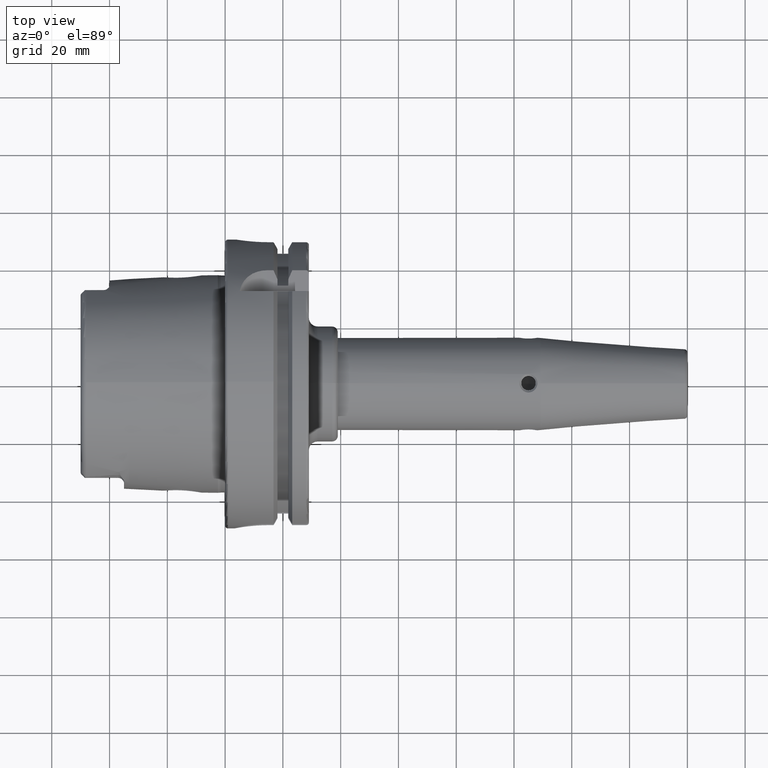
[diagram: clean part render]
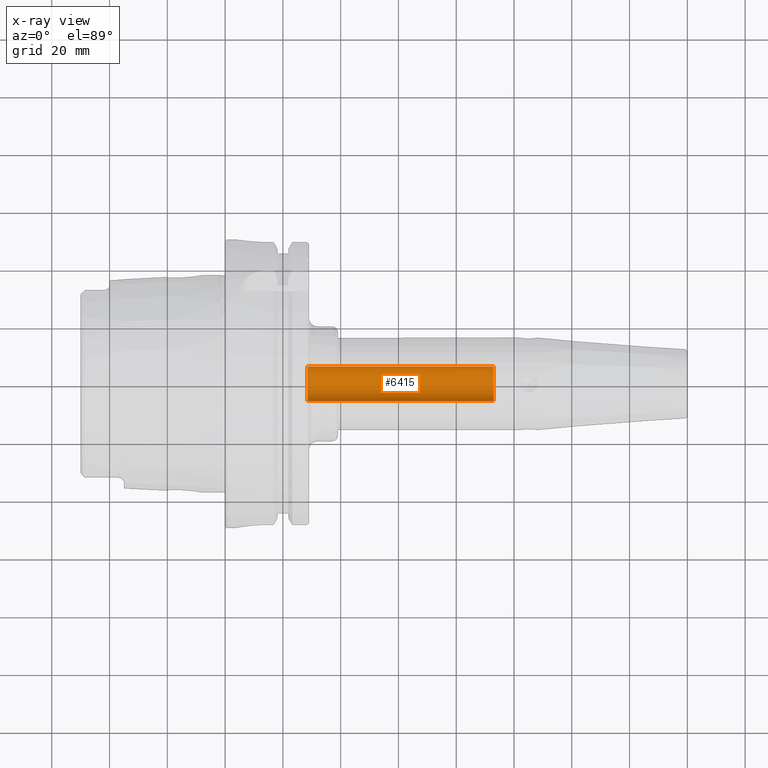
[diagram: x-ray — body ghosted, one internal face saturated and labeled with its STEP entity id]
A machine part, top view, then the same camera in x-ray: the body is ghosted and one INTERNAL B-rep face — a face not visible from any outside direction — is saturated and labeled: STEP entity #6415.
In plain terms, the highlighted cylindrical surface (edge-blend (fillet) strip) has radius 6 mm, axis along (-1, 0, 0).
Its self-contained STEP definition (entity closure, byte-faithful):
#2576=CARTESIAN_POINT('',(9.3E1,0.E0,0.E0));
#2577=DIRECTION('',(1.E0,0.E0,0.E0));
#2578=DIRECTION('',(0.E0,-1.E0,0.E0));
#2579=AXIS2_PLACEMENT_3D('',#2576,#2577,#2578);
#2585=DIRECTION('',(1.E0,0.E0,0.E0));
#2586=VECTOR('',#2585,6.45E1);
#2587=CARTESIAN_POINT('',(2.85E1,6.E0,0.E0));
#2588=LINE('',#2587,#2586);
#2599=CARTESIAN_POINT('',(2.85E1,0.E0,0.E0));
#2600=DIRECTION('',(-1.E0,0.E0,0.E0));
#2601=DIRECTION('',(0.E0,1.E0,0.E0));
#2602=AXIS2_PLACEMENT_3D('',#2599,#2600,#2601);
#2703=DIRECTION('',(1.E0,0.E0,0.E0));
#2704=VECTOR('',#2703,6.45E1);
#2705=CARTESIAN_POINT('',(2.85E1,-6.E0,0.E0));
#2706=LINE('',#2705,#2704);
#3506=CARTESIAN_POINT('',(9.3E1,6.E0,0.E0));
#3507=VERTEX_POINT('',#3506);
#3508=CARTESIAN_POINT('',(9.3E1,-6.E0,0.E0));
#3509=VERTEX_POINT('',#3508);
#3510=CARTESIAN_POINT('',(2.85E1,6.E0,0.E0));
#3511=CARTESIAN_POINT('',(2.85E1,-6.E0,0.E0));
#3512=VERTEX_POINT('',#3510);
#3513=VERTEX_POINT('',#3511);
#6401=CARTESIAN_POINT('',(1.039354218999E2,0.E0,0.E0));
#6402=DIRECTION('',(-1.E0,0.E0,0.E0));
#6403=DIRECTION('',(0.E0,1.E0,0.E0));
#6404=AXIS2_PLACEMENT_3D('',#6401,#6402,#6403);
#6405=CYLINDRICAL_SURFACE('',#6404,6.E0);
#6407=ORIENTED_EDGE('',*,*,#6406,.F.);
#6409=ORIENTED_EDGE('',*,*,#6408,.T.);
#6410=ORIENTED_EDGE('',*,*,#6395,.F.);
#6412=ORIENTED_EDGE('',*,*,#6411,.F.);
#6413=EDGE_LOOP('',(#6407,#6409,#6410,#6412));
#6414=FACE_OUTER_BOUND('',#6413,.F.);
#6415=ADVANCED_FACE('',(#6414),#6405,.F.);
#2580=CIRCLE('',#2579,6.E0);
#2603=CIRCLE('',#2602,6.E0);
#6395=EDGE_CURVE('',#3509,#3507,#2580,.T.);
#6406=EDGE_CURVE('',#3512,#3513,#2603,.T.);
#6408=EDGE_CURVE('',#3512,#3507,#2588,.T.);
#6411=EDGE_CURVE('',#3513,#3509,#2706,.T.);